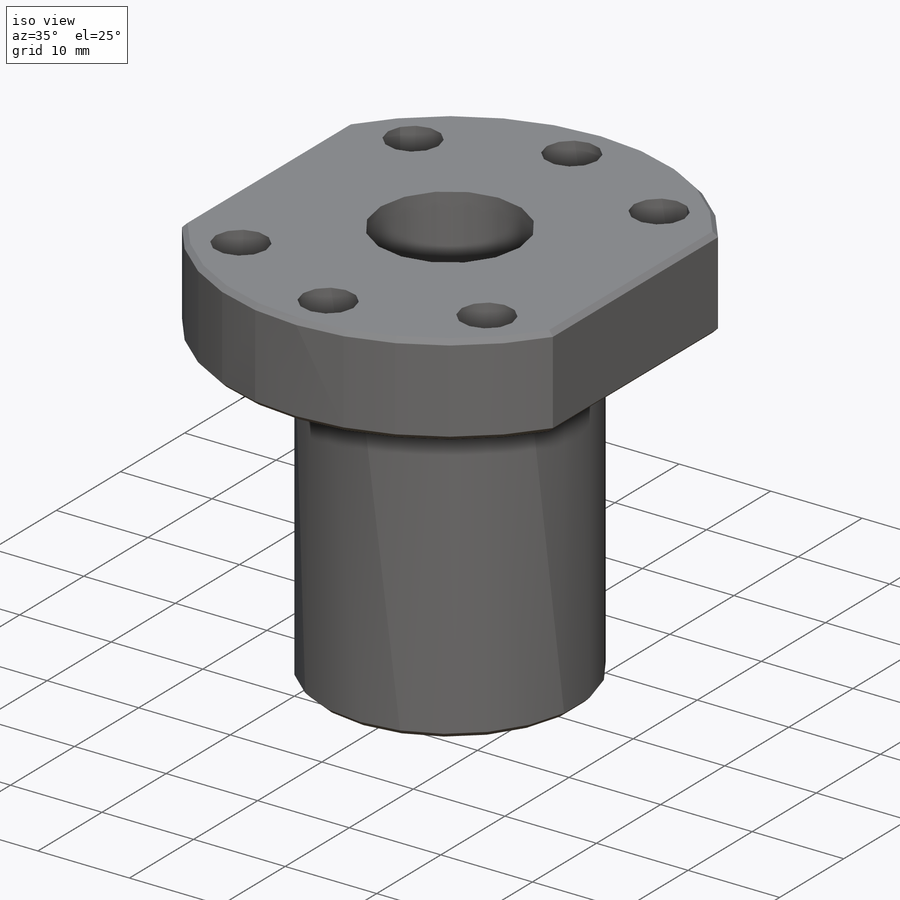
[diagram: iso view]
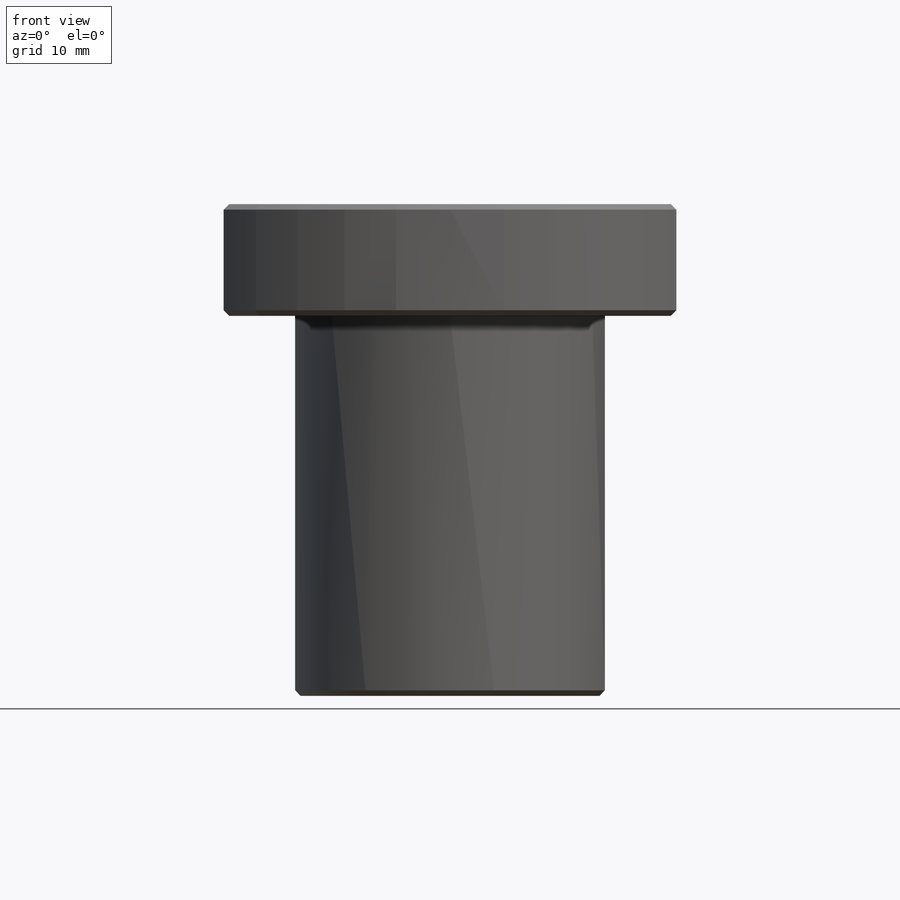
[diagram: front view]
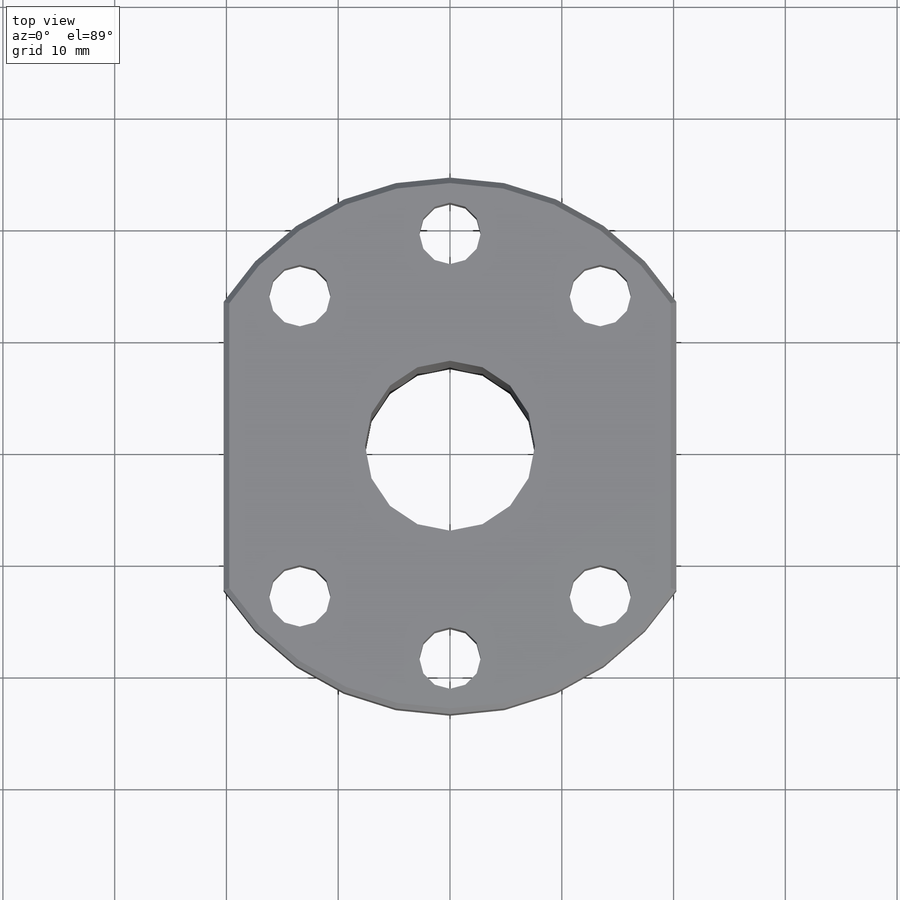
[diagram: top view]
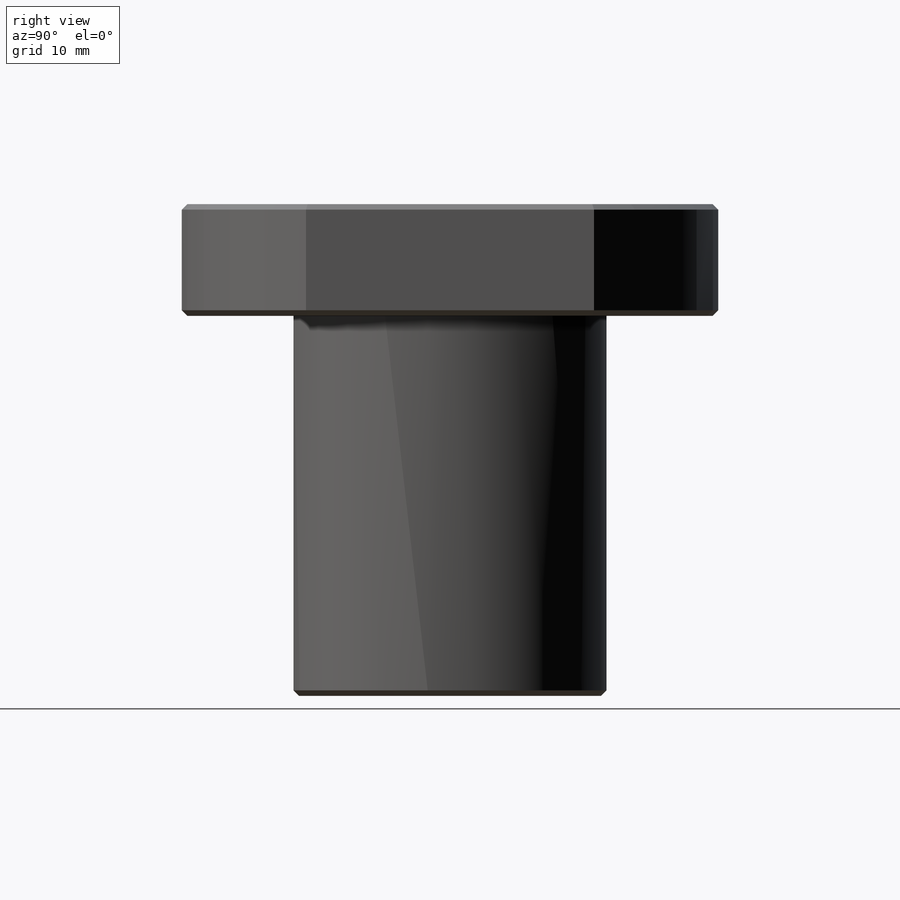
[diagram: right view]
SOLIDWORKS PART (.sldprt)
format: sldprt  version: not decoded by parser v0  size: 247,808 bytes
history: native  units: mm
features: plane x3, sketch x3, extrude x2, material x1, cut_extrude x1, chamfer x1 (+9 scaffold rows collapsed)
feature tree (20):
  scaffold x9  (default folders/planes/origin — collapsed)
  material  "Материал <не указан>"
  plane  "Спереди"
  plane  "Сверху"
  plane  "Справа"
  sketch  "Эскиз1"  dims[D1=28.0mm]
  extrude  "Бобышка-Вытянуть1"  Depth=34mm
  sketch  "Эскиз2"  dims[c1.D1=48.0mm c1.D2=38.0mm c1.D3=5.5mm c2.D2=50.0mm c2.D3=40.5mm c3.D2=50.0mm c3.D3=40.5mm c3.D4=8.0]
  extrude  "Бобышка-Вытянуть2"  Depth=10mm
  sketch  "Эскиз3"  dims[D1=15.2mm]
  cut_extrude  "Вырез-Вытянуть1"  [1 undecoded]
  chamfer  "Фаска1"  Distance=0.5mm Angle=45deg
decode coverage: 6 of 7 modeling features carry decoded parameters
note: 1 parameter value undecoded
note: suppression state not decoded; provenance and decode notes live in map.json
